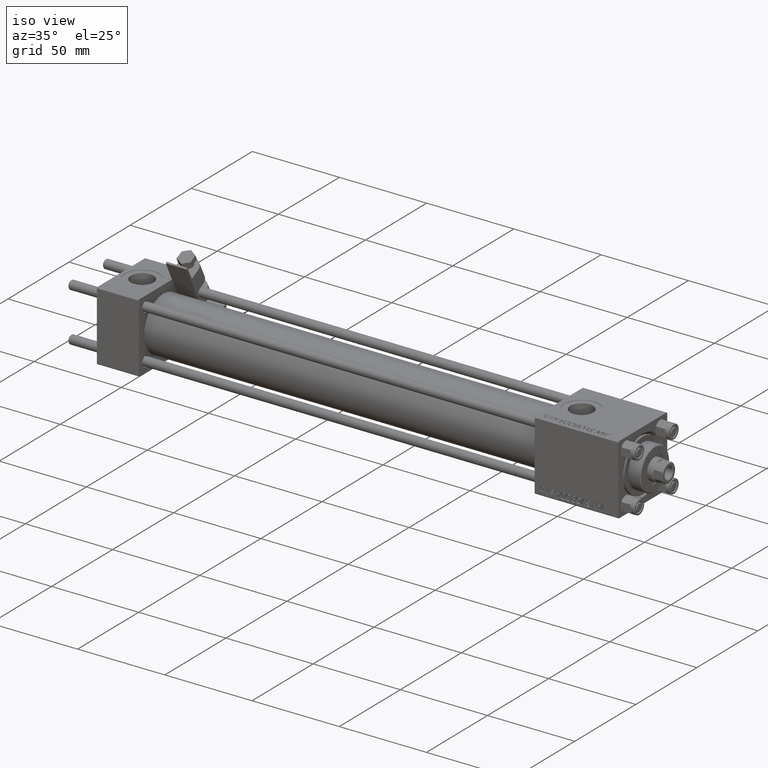
[diagram: clean part render]
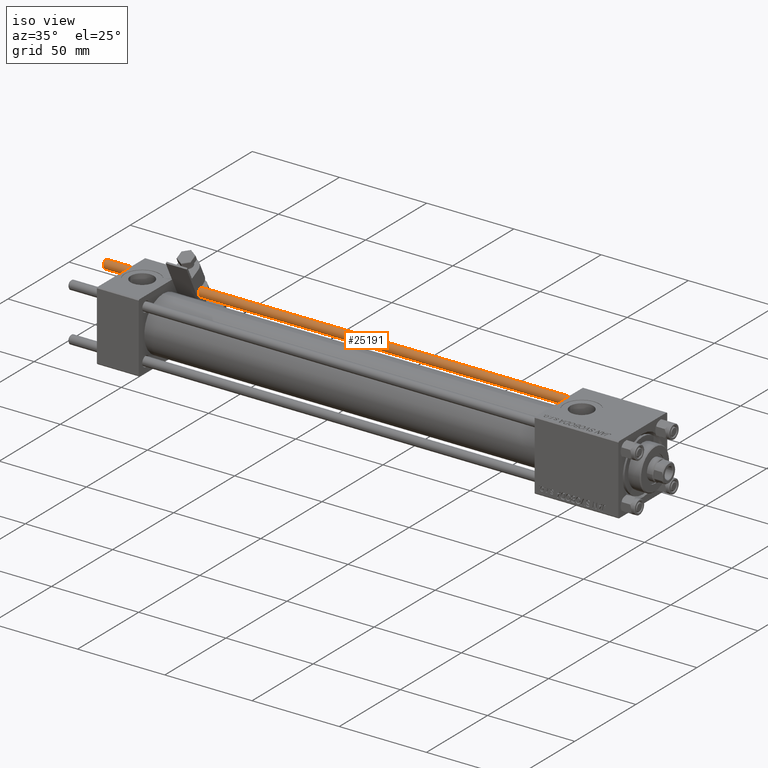
[diagram: same view with one face highlighted and labeled with its STEP entity id]
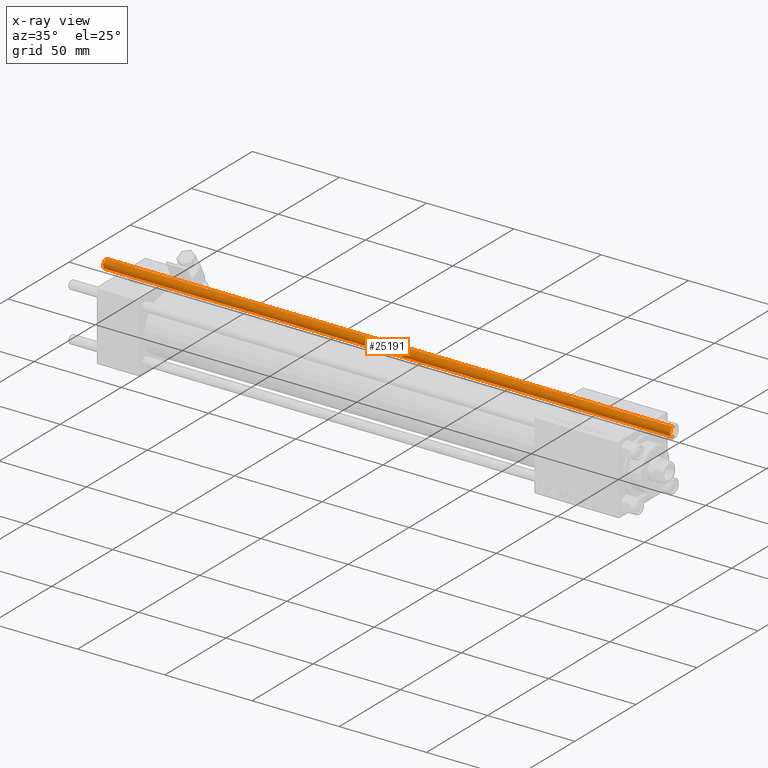
[diagram: x-ray of the same camera — body ghosted, the highlighted face saturated]
A machine part, iso view. The second image highlights one B-rep face of the part: STEP entity #25191.
The next image is the same camera in x-ray: the body ghosted, the highlighted face saturated — about 0% of this face is hidden behind the body in this view.
In plain terms, the highlighted cylindrical surface (edge-blend (fillet) strip) has radius 2.5 mm, axis along (-1, -0, -0).
Its self-contained STEP definition (entity closure, byte-faithful):
#1619 = ORIENTED_EDGE ( 'NONE', *, *, #35125, .T. ) ;
#4204 = CARTESIAN_POINT ( 'NONE',  ( 2.500000000000000000, 3.061616997868383141E-16, 326.0000000000000000 ) ) ;
#4998 = DIRECTION ( 'NONE',  ( -0.000000000000000000, -0.000000000000000000, -1.000000000000000000 ) ) ;
#6314 = EDGE_LOOP ( 'NONE', ( #48594, #18457, #1619, #42492 ) ) ;
#6434 = CARTESIAN_POINT ( 'NONE',  ( 0.000000000000000000, 0.000000000000000000, 325.5000000000000000 ) ) ;
#7196 = DIRECTION ( 'NONE',  ( -0.000000000000000000, -0.000000000000000000, -1.000000000000000000 ) ) ;
#11473 = CARTESIAN_POINT ( 'NONE',  ( -2.500000000000000000, 0.000000000000000000, 326.0000000000000000 ) ) ;
#12745 = CARTESIAN_POINT ( 'NONE',  ( 0.000000000000000000, 0.000000000000000000, 0.4999999999999449329 ) ) ;
#13000 = CARTESIAN_POINT ( 'NONE',  ( 2.500000000000000000, 3.061616997868383141E-16, 325.5000000000000000 ) ) ;
#14451 = DIRECTION ( 'NONE',  ( 1.000000000000000000, 0.000000000000000000, 0.000000000000000000 ) ) ;
#16437 = CARTESIAN_POINT ( 'NONE',  ( -2.500000000000000000, 0.000000000000000000, 0.4999999999999449329 ) ) ;
#16785 = VERTEX_POINT ( 'NONE', #31468 ) ;
#17421 = EDGE_CURVE ( 'NONE', #52158, #22178, #32067, .T. ) ;
#18244 = EDGE_CURVE ( 'NONE', #52158, #16785, #24513, .T. ) ;
#18457 = ORIENTED_EDGE ( 'NONE', *, *, #17421, .T. ) ;
#22178 = VERTEX_POINT ( 'NONE', #41702 ) ;
#24513 = LINE ( 'NONE', #4204, #51740 ) ;
#25191 = ADVANCED_FACE ( 'NONE', ( #40678 ), #52463, .T. ) ;
#27945 = VECTOR ( 'NONE', #7196, 1000.000000000000000 ) ;
#30510 = AXIS2_PLACEMENT_3D ( 'NONE', #44696, #48704, #40147 ) ;
#31468 = CARTESIAN_POINT ( 'NONE',  ( 2.500000000000000000, 3.061616997868383141E-16, 0.4999999999999449329 ) ) ;
#32067 = CIRCLE ( 'NONE', #48269, 2.500000000000000000 ) ;
#35125 = EDGE_CURVE ( 'NONE', #22178, #46763, #43813, .T. ) ;
#35288 = DIRECTION ( 'NONE',  ( 0.000000000000000000, 0.000000000000000000, -1.000000000000000000 ) ) ;
#36566 = AXIS2_PLACEMENT_3D ( 'NONE', #12745, #49896, #40802 ) ;
#36684 = EDGE_CURVE ( 'NONE', #46763, #16785, #43392, .T. ) ;
#40147 = DIRECTION ( 'NONE',  ( -1.000000000000000000, 0.000000000000000000, 0.000000000000000000 ) ) ;
#40678 = FACE_OUTER_BOUND ( 'NONE', #6314, .T. ) ;
#40802 = DIRECTION ( 'NONE',  ( 1.000000000000000000, 0.000000000000000000, 0.000000000000000000 ) ) ;
#41702 = CARTESIAN_POINT ( 'NONE',  ( -2.500000000000000000, 0.000000000000000000, 325.5000000000000000 ) ) ;
#42492 = ORIENTED_EDGE ( 'NONE', *, *, #36684, .T. ) ;
#43392 = CIRCLE ( 'NONE', #36566, 2.500000000000000000 ) ;
#43813 = LINE ( 'NONE', #11473, #27945 ) ;
#44696 = CARTESIAN_POINT ( 'NONE',  ( 0.000000000000000000, 0.000000000000000000, 326.0000000000000000 ) ) ;
#46763 = VERTEX_POINT ( 'NONE', #16437 ) ;
#48269 = AXIS2_PLACEMENT_3D ( 'NONE', #6434, #35288, #14451 ) ;
#48594 = ORIENTED_EDGE ( 'NONE', *, *, #18244, .F. ) ;
#48704 = DIRECTION ( 'NONE',  ( -0.000000000000000000, -0.000000000000000000, -1.000000000000000000 ) ) ;
#49896 = DIRECTION ( 'NONE',  ( -0.000000000000000000, -0.000000000000000000, 1.000000000000000000 ) ) ;
#51740 = VECTOR ( 'NONE', #4998, 1000.000000000000000 ) ;
#52158 = VERTEX_POINT ( 'NONE', #13000 ) ;
#52463 = CYLINDRICAL_SURFACE ( 'NONE', #30510, 2.500000000000000000 ) ;